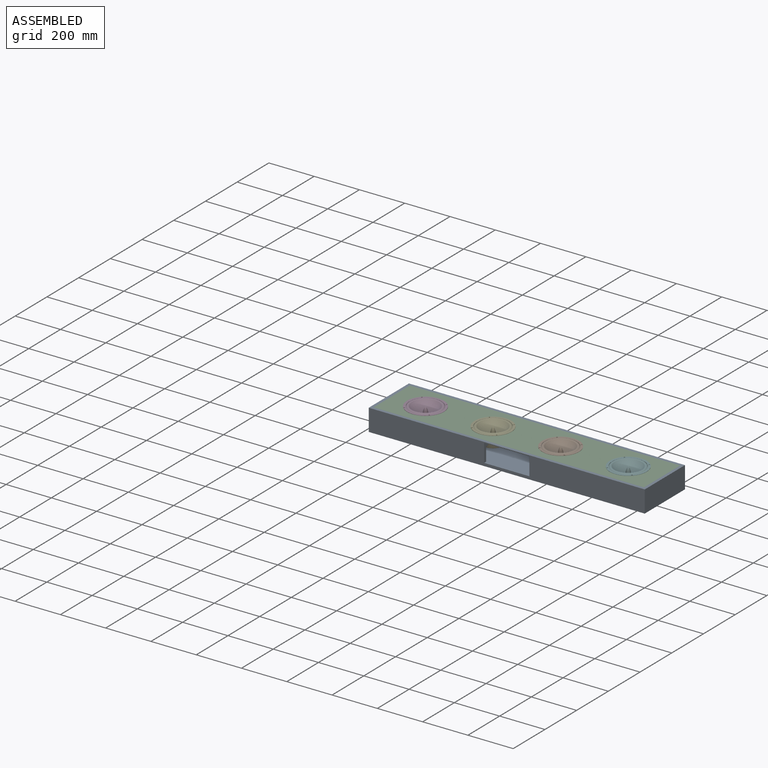
[diagram: assembled view]
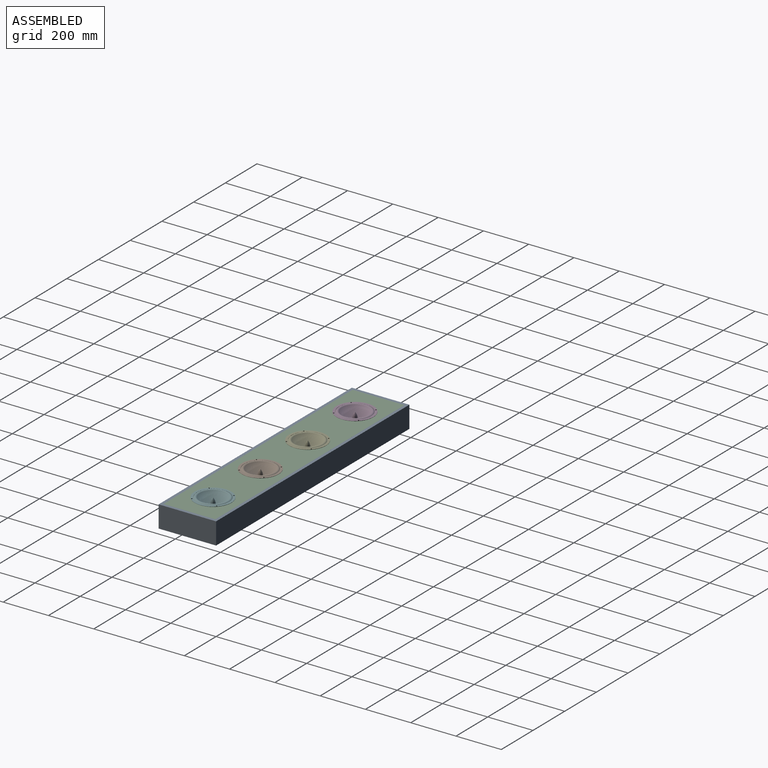
[diagram: assembled view, second angle]
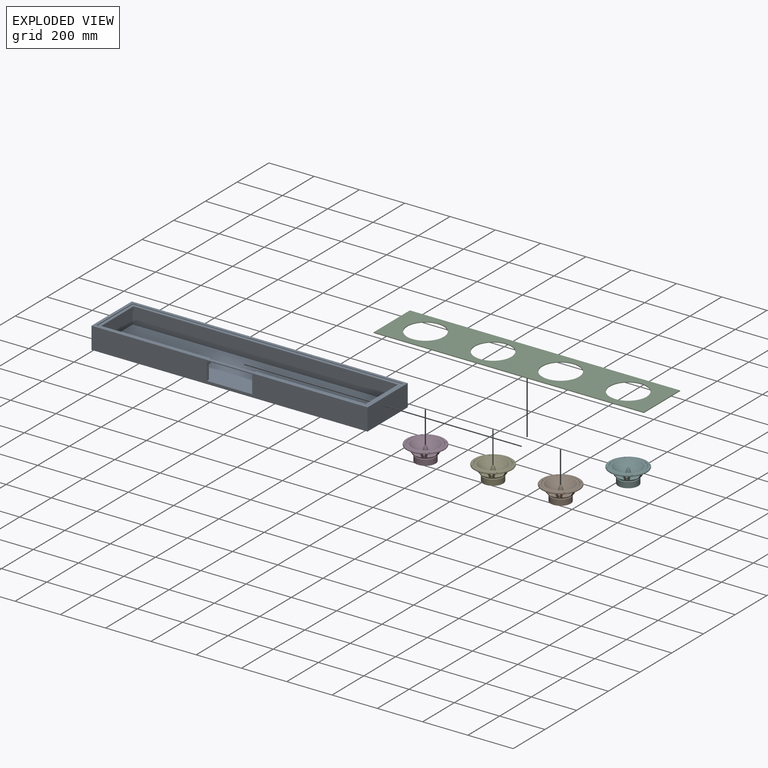
[diagram: exploded view]
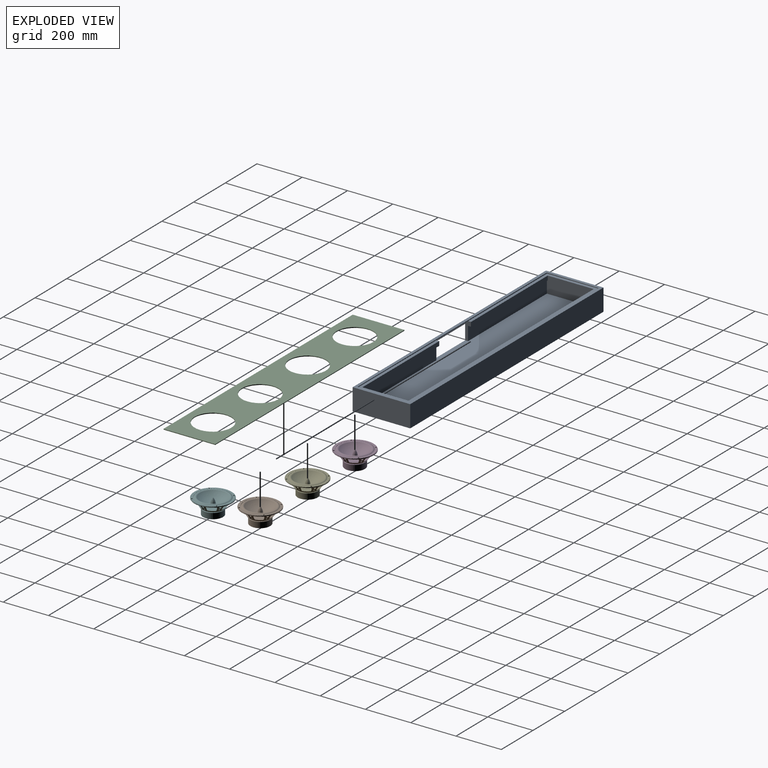
[diagram: exploded view, second angle]
ASSEMBLY  parts=6 mates=5
PART A: 34 faces, bbox 1219.2x254x96.5 mm
  f0: plane 228.6x3.18mm, normal (-1,0,0), area 725.8mm2, adj f5,f9,f11,f21,f23
  f1: plane 1168.4x19.05mm, normal (0,-1,0), area 22258mm2, adj f21,f22,f30,f33
  f2: plane 228.6x3.81mm, normal (1,0,0), area 798.4mm2, adj f5,f9,f11,f21,f26,f28
  f3: plane 228.6x61.6mm, normal (1,0,0), area 14008mm2, adj f6,f16,f17,f22,f27,f29
  f4: plane 484.25x19.05mm, normal (0,1,0), area 9225mm2, adj f20,f26,f27,f30
  f5: plane 1193.8x3.81mm, normal (0,1,0), area 4390.6mm2, adj f0,f2,f11,f19,f23,f26
  f6: plane 496.95x60.96mm, normal (0,1,0), area 30294.1mm2, adj f3,f17,f20,f27
  f7: plane 496.95x60.96mm, normal (0,1,0), area 30294.1mm2, adj f8,f17,f18,f24
  f8: plane 228.6x61.6mm, normal (-1,0,0), area 14008mm2, adj f7,f16,f17,f22,f24,f31
  f9: plane 1193.8x3.18mm, normal (0,-1,0), area 3790.3mm2, adj f0,f2,f11,f21
  f10: plane 1219.2x96.52mm, normal (0,-1,0), area 101683.3mm2, adj f11,f12,f14,f15,f17,f18,f19,f20
  f11: plane 1219.2x254mm, normal (0,0,1), area 36774.1mm2, adj f0,f2,f5,f9,f10,f12,f13,f14
  f12: plane 254x96.52mm, normal (1,0,0), area 24516.1mm2, adj f10,f11,f13,f15
  f13: plane 1219.2x96.52mm, normal (0,1,0), area 117677.2mm2, adj f11,f12,f14,f15
  f14: plane 254x96.52mm, normal (-1,0,0), area 24516.1mm2, adj f10,f11,f13,f15
  f15: plane 1219.2x254mm, normal (0,0,-1), area 309676.8mm2, adj f10,f12,f13,f14
  f16: plane 1193.8x61.6mm, normal (0,-1,0), area 73532.1mm2, adj f3,f8,f17,f22
  f17: plane 1193.8x241.3mm, normal (0,0,1), area 275441.4mm2, adj f3,f6,f7,f8,f10,f16,f18,f20
  f18: plane 80.01x25.4mm, normal (-1,0,0), area 1258.1mm2, adj f7,f10,f17,f19,f23,f24,f25
  f19: plane 199.9x12.7mm, normal (0,0,-1), area 2538.7mm2, adj f5,f10,f18,f20
  f20: plane 80.01x25.4mm, normal (1,0,0), area 1258.1mm2, adj f4,f6,f10,f17,f19,f26,f27
  f21: plane 1193.8x215.9mm, normal (0,0,1), area 17741.9mm2, adj f0,f1,f2,f9,f28,f32,f33
  f22: plane 1193.8x12.7mm, normal (0,0,-1), area 15161.3mm2, adj f1,f3,f8,f16,f29,f31
  f23: plane 496.95x12.7mm, normal (0,0,1), area 6311.3mm2, adj f0,f5,f18,f25,f32
  f24: plane 496.95x12.7mm, normal (0,0,-1), area 6311.3mm2, adj f7,f8,f18,f25,f31
  f25: plane 484.25x19.67mm, normal (0,1,0), area 9374.8mm2, adj f18,f23,f24,f33
  f26: plane 496.95x12.7mm, normal (0,0,1), area 6311.3mm2, adj f2,f4,f5,f20,f28
  f27: plane 496.95x12.7mm, normal (0,0,-1), area 6311.3mm2, adj f3,f4,f6,f20,f29
  f28: plane 203.2x12.7mm, normal (0,0,1), area 2580.7mm2, adj f2,f21,f26,f30
  f29: plane 203.2x12.7mm, normal (0,0,-1), area 2580.7mm2, adj f3,f22,f27,f30
  f30: plane 203.2x19.69mm, normal (1,0,0), area 3871mm2, adj f1,f4,f28,f29
  f31: plane 203.2x12.7mm, normal (0,0,-1), area 2580.7mm2, adj f8,f22,f24,f33
  f32: plane 12.7x0.02mm, normal (0,-1,0), area 0.1mm2, adj f21,f23,f33
  f33: plane 203.2x19.69mm, normal (-1,0,0), area 3935.5mm2, adj f1,f21,f25,f31,f32
PART B: 114 faces, bbox 180.2x180.2x72.9 mm
  f0: plane 4.3x1.41mm, normal (-0.71,-0.71,0), area 8.6mm2, adj f1,f3,f42,f108
  f1: cylinder r=2.43mm len=4.3mm, axis (0,0,-1), area 32.8mm2, adj f0,f2,f42,f108
  f2: plane 4.3x1.41mm, normal (0.71,0.71,0), area 8.6mm2, adj f1,f3,f42,f108
  f3: cylinder r=2.43mm len=4.3mm, axis (0,0,-1), area 32.8mm2, adj f0,f2,f42,f108
  f4: plane 4.3x1.41mm, normal (-0.71,0.71,0), area 8.6mm2, adj f5,f7,f42,f108
  f5: cylinder r=2.43mm len=4.3mm, axis (0,0,-1), area 32.8mm2, adj f4,f6,f42,f108
  f6: plane 4.3x1.41mm, normal (0.71,-0.71,0), area 8.6mm2, adj f5,f7,f42,f108
  f7: cylinder r=2.43mm len=4.3mm, axis (0,0,-1), area 32.8mm2, adj f4,f6,f42,f108
  f8: plane 4.3x1.41mm, normal (0.71,0.71,0), area 8.6mm2, adj f9,f11,f42,f108
  f9: cylinder r=2.43mm len=4.3mm, axis (0,0,-1), area 32.8mm2, adj f8,f10,f42,f108
  f10: plane 4.3x1.41mm, normal (-0.71,-0.71,0), area 8.6mm2, adj f9,f11,f42,f108
  f11: cylinder r=2.43mm len=4.3mm, axis (0,0,-1), area 32.8mm2, adj f8,f10,f42,f108
  f12: plane 4.3x1.41mm, normal (0.71,-0.71,0), area 8.6mm2, adj f13,f15,f42,f108
  f13: cylinder r=2.43mm len=4.3mm, axis (0,0,-1), area 32.8mm2, adj f12,f14,f42,f108
  f14: plane 4.3x1.41mm, normal (-0.71,0.71,0), area 8.6mm2, adj f13,f15,f42,f108
  f15: cylinder r=2.43mm len=4.3mm, axis (0,0,-1), area 32.8mm2, adj f12,f14,f42,f108
  f16: cylinder r=70.75mm len=141.5mm, axis (0,0,1), area 889.1mm2, adj f17,f100
  f17: torus R=64.25mm, axis (0,0,1), area 6126mm2, adj f16,f18
  f18: revolved ~115.5x115.5mm, area 11791.9mm2, adj f17,f19
  f19: plane 23.32x23.32mm, normal (0,0,1), area 106.3mm2, adj f18,f20
  f20: bspline ~23.7x19.84mm, area 994.7mm2, adj f19
  f21: cone r=0.11mm half-angle=45deg, axis (0,0,1), area 0.2mm2, adj f22
  f22: bspline ~23.6x20.31mm, area 1029.3mm2, adj f21,f23
  f23: plane 22.94x22.94mm, normal (0,0,-1), area 88mm2, adj f22,f24
  f24: revolved ~115.05x115.05mm, area 11698mm2, adj f23,f25
  f25: torus R=64.25mm, axis (0,0,1), area 6387.7mm2, adj f24,f26
  f26: cylinder r=71.05mm len=142.1mm, axis (0,0,1), area 935.5mm2, adj f25,f27
  f27: plane 142.5x142.5mm, normal (0,0,-1), area 89.4mm2, adj f26,f40
  f28: bspline ~6.7x6.29mm, area 19.4mm2, adj f102,f110
  f29: bspline ~11.16x11.14mm, area 34.7mm2, adj f102,f110
  f30: bspline ~6.7x6.29mm, area 19.4mm2, adj f102,f110
  f31: bspline ~11.16x11.14mm, area 34.7mm2, adj f102,f110
  f32: bspline ~5.8x5.32mm, area 19.4mm2, adj f102,f110
  f33: bspline ~9.8x8.2mm, area 34.7mm2, adj f102,f110
  f34: bspline ~6.7x6.29mm, area 19.4mm2, adj f102,f110
  f35: bspline ~11.16x11.14mm, area 34.7mm2, adj f102,f110
  f36: bspline ~6.7x6.29mm, area 19.4mm2, adj f102,f110
  f37: bspline ~11.16x11.14mm, area 34.7mm2, adj f102,f110
  f38: bspline ~5.8x5.32mm, area 18.4mm2, adj f102,f110
  f39: bspline ~9.8x8.2mm, area 34.6mm2, adj f102,f110
  f40: cylinder r=71.25mm len=142.5mm, axis (0,0,-1), area 1477.3mm2, adj f27,f42
  f41: cylinder r=81.5mm len=163mm, axis (0,0,-1), area 1689.9mm2, adj f42,f99
  f42: plane 163x163mm, normal (0,0,-1), area 4806.1mm2, adj f0,f1,f2,f3,f4,f5,f6,f7
  f43: cone r=29.5mm half-angle=45deg, axis (0,0,1), area 786.4mm2, adj f44,f95
  f44: plane 56x56mm, normal (0,0,1), area 2463mm2, adj f43
  f45: cylinder r=4mm len=7.15mm, axis (-0.87,-0.5,0), area 9mm2, adj f46,f52,f102,f110
  f46: plane 12.55x9.91mm, normal (0.49,-0.85,-0.2), area 15.8mm2, adj f45,f47,f102,f110
  f47: cylinder r=4mm len=4.73mm, axis (-0.87,-0.5,0), area 7.1mm2, adj f46,f48,f102,f110
  f48: plane 24.4x14.82mm, normal (0,0,-1), area 34mm2, adj f47,f49,f102,f110
  f49: cylinder r=4mm len=4.73mm, axis (-0.87,-0.5,0), area 7.1mm2, adj f48,f50,f102,f110
  f50: plane 12.55x7.51mm, normal (-0.49,0.85,-0.2), area 15.8mm2, adj f49,f51,f102,f110
  f51: cylinder r=4mm len=7.15mm, axis (-0.87,-0.5,0), area 9mm2, adj f50,f52,f102,f110
  f52: plane 28.55x17.21mm, normal (0,0,1), area 39.9mm2, adj f45,f51,f102,f110
  f53: cylinder r=4mm len=7.15mm, axis (-0.87,0.5,0), area 9mm2, adj f54,f60,f102,f110
  f54: plane 12.55x7.51mm, normal (-0.49,-0.85,-0.2), area 15.8mm2, adj f53,f55,f102,f110
  f55: cylinder r=4mm len=4.73mm, axis (-0.87,0.5,0), area 7.1mm2, adj f54,f56,f102,f110
  f56: plane 24.4x14.82mm, normal (0,0,-1), area 34mm2, adj f55,f57,f102,f110
  f57: cylinder r=4mm len=4.73mm, axis (-0.87,0.5,0), area 7.1mm2, adj f56,f58,f102,f110
  f58: plane 12.55x9.91mm, normal (0.49,0.85,-0.2), area 15.8mm2, adj f57,f59,f102,f110
  f59: cylinder r=4mm len=7.15mm, axis (-0.87,0.5,0), area 9mm2, adj f58,f60,f102,f110
  f60: plane 28.55x17.21mm, normal (0,0,1), area 39.9mm2, adj f53,f59,f102,f110
  f61: cylinder r=4mm len=5.95mm, axis (0,1,0), area 9mm2, adj f62,f68,f102,f110
  f62: plane 12.55x9.97mm, normal (-0.98,0,-0.2), area 15.8mm2, adj f61,f63,f102,f110
  f63: cylinder r=4mm len=3.92mm, axis (0,1,0), area 7.1mm2, adj f62,f64,f102,f110
  f64: plane 27.44x3.1mm, normal (0,0,-1), area 34mm2, adj f63,f65,f102,f110
  f65: cylinder r=4mm len=3.92mm, axis (0,1,0), area 7.1mm2, adj f64,f66,f102,f110
  f66: plane 12.55x9.97mm, normal (0.98,0,-0.2), area 15.8mm2, adj f65,f67,f102,f110
  f67: cylinder r=4mm len=5.95mm, axis (0,1,0), area 9mm2, adj f66,f68,f102,f110
  f68: plane 32.24x3.25mm, normal (0,0,1), area 39.9mm2, adj f61,f67,f102,f110
  f69: cylinder r=4mm len=7.15mm, axis (0.87,0.5,0), area 9mm2, adj f70,f76,f102,f110
  f70: plane 12.55x9.91mm, normal (-0.49,0.85,-0.2), area 15.8mm2, adj f69,f71,f102,f110
  f71: cylinder r=4mm len=4.73mm, axis (0.87,0.5,0), area 7.1mm2, adj f70,f72,f102,f110
  f72: plane 24.4x14.82mm, normal (0,0,-1), area 34mm2, adj f71,f73,f102,f110
  f73: cylinder r=4mm len=4.73mm, axis (0.87,0.5,0), area 7.1mm2, adj f72,f74,f102,f110
  f74: plane 12.55x7.51mm, normal (0.49,-0.85,-0.2), area 15.8mm2, adj f73,f75,f102,f110
  f75: cylinder r=4mm len=7.15mm, axis (0.87,0.5,0), area 9mm2, adj f74,f76,f102,f110
  f76: plane 28.55x17.21mm, normal (0,0,1), area 39.9mm2, adj f69,f75,f102,f110
  f77: cylinder r=4mm len=7.15mm, axis (0.87,-0.5,0), area 9mm2, adj f78,f84,f102,f110
  f78: plane 12.55x7.51mm, normal (0.49,0.85,-0.2), area 15.8mm2, adj f77,f79,f102,f110
  f79: cylinder r=4mm len=4.73mm, axis (0.87,-0.5,0), area 7.1mm2, adj f78,f80,f102,f110
  f80: plane 24.4x14.82mm, normal (0,0,-1), area 34mm2, adj f79,f81,f102,f110
  f81: cylinder r=4mm len=4.73mm, axis (0.87,-0.5,0), area 7.1mm2, adj f80,f82,f102,f110
  f82: plane 12.55x9.91mm, normal (-0.49,-0.85,-0.2), area 15.8mm2, adj f81,f83,f102,f110
  f83: cylinder r=4mm len=7.15mm, axis (0.87,-0.5,0), area 9mm2, adj f82,f84,f102,f110
  f84: plane 28.55x17.21mm, normal (0,0,1), area 39.9mm2, adj f77,f83,f102,f110
  f85: cylinder r=4mm len=5.95mm, axis (0,-1,0), area 9mm2, adj f86,f92,f102,f110
  f86: plane 12.55x9.97mm, normal (0.98,0,-0.2), area 15.8mm2, adj f85,f87,f102,f110
  f87: cylinder r=4mm len=3.92mm, axis (0,-1,0), area 7.1mm2, adj f86,f88,f102,f110
  f88: plane 27.44x3.1mm, normal (0,0,-1), area 34mm2, adj f87,f89,f102,f110
  f89: cylinder r=4mm len=3.92mm, axis (0,-1,0), area 7.1mm2, adj f88,f90,f102,f110
  f90: plane 12.55x9.97mm, normal (-0.98,0,-0.2), area 15.8mm2, adj f89,f91,f102,f110
  f91: cylinder r=4mm len=5.95mm, axis (0,-1,0), area 9mm2, adj f90,f92,f102,f110
  f92: plane 32.24x3.25mm, normal (0,0,1), area 39.9mm2, adj f85,f91,f102,f110
  f93: cone r=41mm half-angle=71.6deg, axis (0,0,-1), area 1629.3mm2, adj f94,f95
  f94: cylinder r=44mm len=88mm, axis (0,0,1), area 6911.5mm2, adj f93,f96
  f95: plane 76x76mm, normal (0,0,1), area 1517.4mm2, adj f43,f93
  f96: cone r=43mm half-angle=45deg, axis (0,0,1), area 764.2mm2, adj f94,f97
  f97: plane 84x84mm, normal (0,0,-1), area 131.2mm2, adj f96,f112
  f98: cylinder r=82mm len=164mm, axis (0,0,1), area 772.8mm2, adj f99,f113
  f99: torus R=81.5mm, axis (0,0,1), area 403.8mm2, adj f41,f98
  f100: plane 141.5x141.5mm, normal (0,0,-1), area 457.9mm2, adj f16,f101
  f101: torus R=68mm, axis (0,0,1), area 1470.7mm2, adj f100,f102
  f102: cone r=58.69mm half-angle=35.2deg, axis (0,0,-1), area 6786.8mm2, adj f28,f29,f30,f31,f32,f33,f34,f35
  f103: plane 97.96x97.96mm, normal (0,0,-1), area 1226.3mm2, adj f102,f104
  f104: cone r=42.6mm half-angle=34deg, axis (0,0,-1), area 1854.1mm2, adj f103,f105
  f105: plane 81.94x81.94mm, normal (0,0,-1), area 5273mm2, adj f104
  f106: cylinder r=83mm len=166mm, axis (0,0,1), area 782.3mm2, adj f107,f113
  f107: torus R=81.5mm, axis (0,0,1), area 1220.7mm2, adj f106,f108
  f108: plane 163x163mm, normal (0,0,1), area 4917.8mm2, adj f0,f1,f2,f3,f4,f5,f6,f7
  f109: torus R=68mm, axis (0,0,1), area 1395mm2, adj f108,f110
  f110: cone r=59.51mm half-angle=35.2deg, axis (0,0,-1), area 7029.2mm2, adj f28,f29,f30,f31,f32,f33,f34,f35
  f111: plane 99x99mm, normal (0,0,1), area 1236.1mm2, adj f110,f112
  f112: cone r=43.43mm half-angle=34deg, axis (0,0,-1), area 1877mm2, adj f97,f111
  f113: plane 166x166mm, normal (0,0,-1), area 518.4mm2, adj f98,f106
PART C: 10 faces, bbox 1193.8x228.6x3.2 mm
  f0: plane 1193.8x3.18mm, normal (0,-1,0), area 3790.3mm2, adj f1,f7,f8,f9
  f1: plane 228.6x3.18mm, normal (1,0,0), area 725.8mm2, adj f0,f2,f8,f9
  f2: plane 1193.8x3.18mm, normal (0,1,0), area 3790.3mm2, adj f1,f7,f8,f9
  f3: cylinder r=81.28mm len=162.56mm, axis (0,0,-1), area 1621.5mm2, adj f8,f9
  f4: cylinder r=81.28mm len=162.56mm, axis (0,0,-1), area 1621.5mm2, adj f8,f9
  f5: cylinder r=81.28mm len=162.56mm, axis (0,0,-1), area 1621.5mm2, adj f8,f9
  f6: cylinder r=81.28mm len=162.56mm, axis (0,0,-1), area 1621.5mm2, adj f8,f9
  f7: plane 228.6x3.18mm, normal (-1,0,0), area 725.8mm2, adj f0,f2,f8,f9
  f8: plane 1193.8x228.6mm, normal (0,0,1), area 189883.7mm2, adj f0,f1,f2,f3,f4,f5,f6,f7
  f9: plane 1193.8x228.6mm, normal (0,0,-1), area 189883.7mm2, adj f0,f1,f2,f3,f4,f5,f6,f7
PART D: same geometry as B
PART E: same geometry as B
PART F: same geometry as B
PLACE A at identity
PLACE B rot(axis=(-1,0,0),180deg) t=(149.23,0,1.8)mm
PLACE C t=(0,0,-3.18)mm
PLACE D rot(axis=(1,0,0),180deg) t=(-447.67,0,1.8)mm
PLACE E rot(axis=(1,0,0),180deg) t=(-149.22,0,1.8)mm
PLACE F rot(axis=(-1,0,0),180deg) t=(447.68,0,1.8)mm
MATE fastened E.f16 <-> C.f4  axis (0,0,-1) through (-149.22,0,0)mm
MATE fastened B.f16 <-> C.f5  axis (0,0,-1) through (149.23,0,0)mm
MATE fastened F.f16 <-> C.f6  axis (0,0,-1) through (447.68,0,0)mm
MATE fastened D.f16 <-> C.f3  axis (0,0,-1) through (-447.67,0,0)mm
MATE fastened C.f7 <-> A.f2  axis (-1,0,0) through (-596.9,114.3,0)mm
